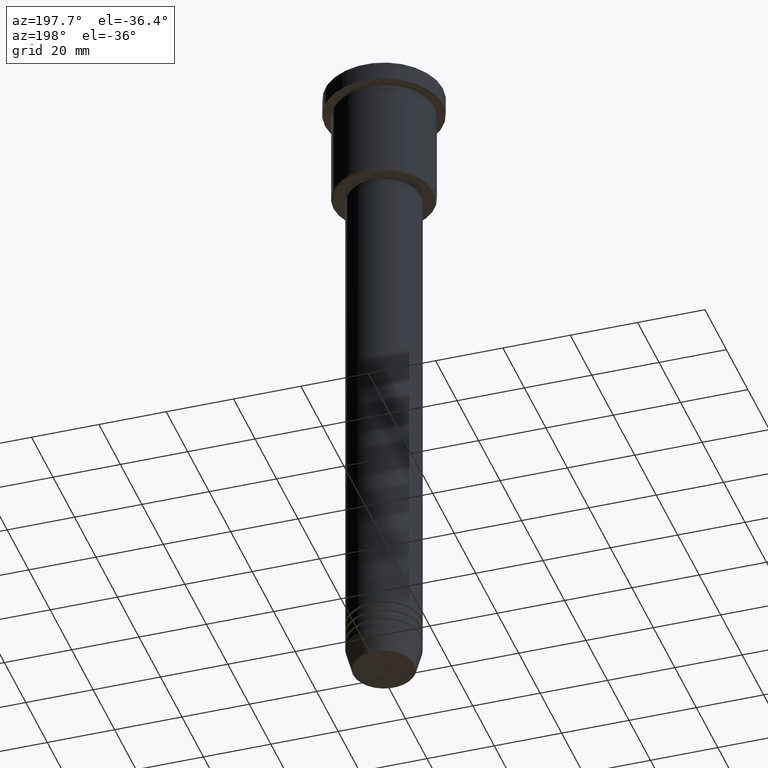
[diagram: clean part render]
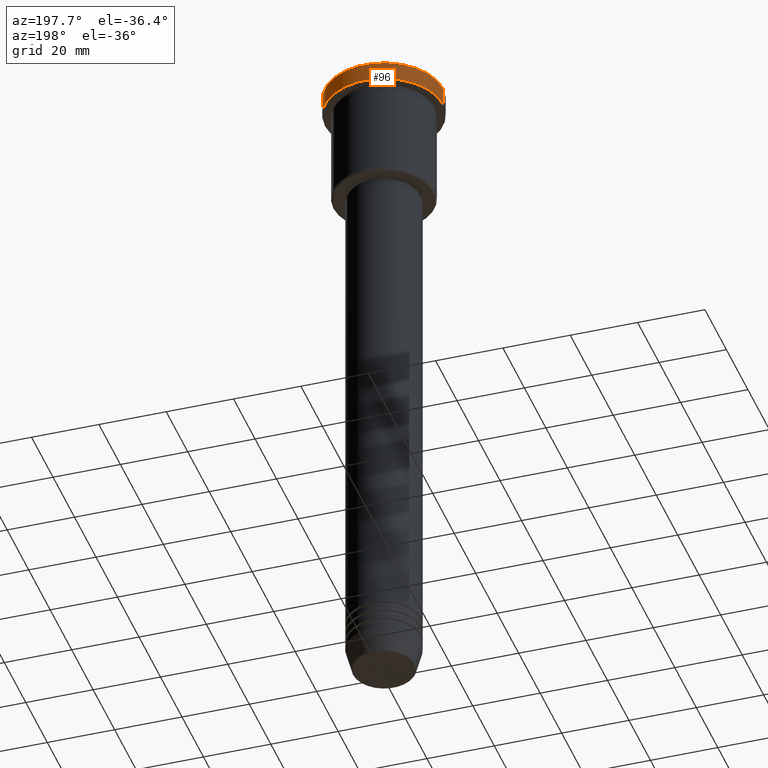
[diagram: same view with one face highlighted and labeled with its STEP entity id]
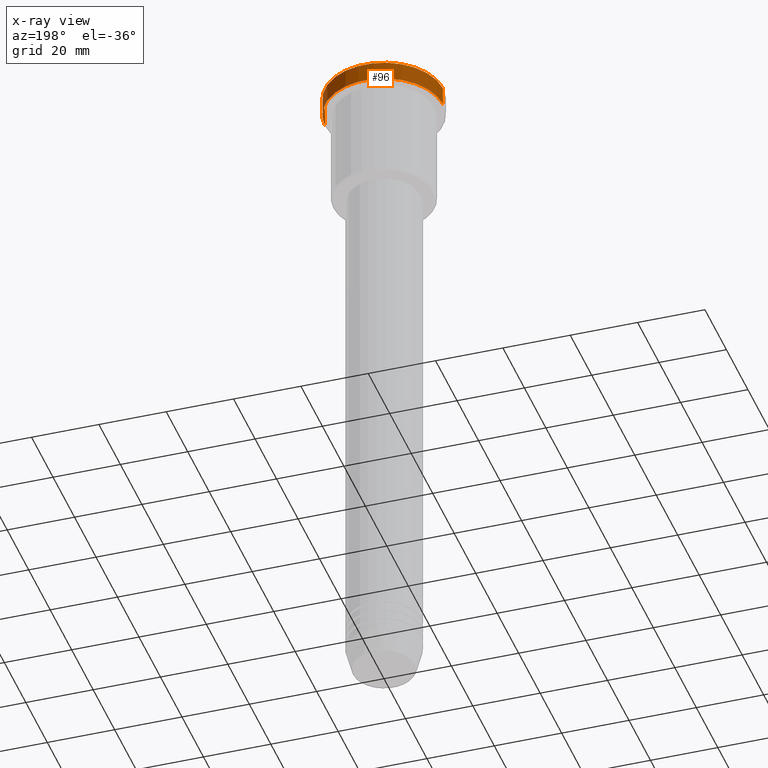
[diagram: x-ray of the same camera — body ghosted, the highlighted face saturated]
A machine part, auxiliary view. The second image highlights one B-rep face of the part: STEP entity #96.
The next image is the same camera in x-ray: the body ghosted, the highlighted face saturated — about 0% of this face is hidden behind the body in this view.
In plain terms, the highlighted cylindrical surface (partial cylindrical patch) has radius 17.5 mm, axis along (-0, -0, 1).
Its self-contained STEP definition (entity closure, byte-faithful):
#2 = EDGE_CURVE ( 'NONE', #369, #673, #1000, .T. ) ;
#5 = CARTESIAN_POINT ( 'NONE',  ( 17.50000000000000000, 0.000000000000000000, -5.999999999999995559 ) ) ;
#28 = FACE_OUTER_BOUND ( 'NONE', #325, .T. ) ;
#68 = DIRECTION ( 'NONE',  ( -0.000000000000000000, -0.000000000000000000, 1.000000000000000000 ) ) ;
#94 = CARTESIAN_POINT ( 'NONE',  ( 0.000000000000000000, 0.000000000000000000, -5.999999999999995559 ) ) ;
#96 = ADVANCED_FACE ( 'NONE', ( #28 ), #839, .T. ) ;
#148 = ORIENTED_EDGE ( 'NONE', *, *, #2, .T. ) ;
#167 = CIRCLE ( 'NONE', #509, 17.50000000000000000 ) ;
#174 = LINE ( 'NONE', #441, #885 ) ;
#249 = CARTESIAN_POINT ( 'NONE',  ( -17.50000000000000000, 2.143131898507868248E-15, 0.000000000000000000 ) ) ;
#325 = EDGE_LOOP ( 'NONE', ( #394, #1172, #148, #550 ) ) ;
#369 = VERTEX_POINT ( 'NONE', #1075 ) ;
#394 = ORIENTED_EDGE ( 'NONE', *, *, #889, .T. ) ;
#419 = VECTOR ( 'NONE', #892, 1000.000000000000000 ) ;
#441 = CARTESIAN_POINT ( 'NONE',  ( 17.50000000000000000, 0.000000000000000000, 0.000000000000000000 ) ) ;
#466 = CARTESIAN_POINT ( 'NONE',  ( 0.000000000000000000, 0.000000000000000000, -0.5000000000000003331 ) ) ;
#504 = AXIS2_PLACEMENT_3D ( 'NONE', #466, #536, #896 ) ;
#509 = AXIS2_PLACEMENT_3D ( 'NONE', #94, #623, #884 ) ;
#536 = DIRECTION ( 'NONE',  ( 0.000000000000000000, 0.000000000000000000, -1.000000000000000000 ) ) ;
#550 = ORIENTED_EDGE ( 'NONE', *, *, #904, .F. ) ;
#557 = DIRECTION ( 'NONE',  ( -0.000000000000000000, -0.000000000000000000, 1.000000000000000000 ) ) ;
#596 = AXIS2_PLACEMENT_3D ( 'NONE', #750, #557, #1106 ) ;
#623 = DIRECTION ( 'NONE',  ( -0.000000000000000000, -0.000000000000000000, 1.000000000000000000 ) ) ;
#634 = CARTESIAN_POINT ( 'NONE',  ( -17.50000000000000000, 2.143131898507868248E-15, -5.999999999999995559 ) ) ;
#673 = VERTEX_POINT ( 'NONE', #1117 ) ;
#750 = CARTESIAN_POINT ( 'NONE',  ( 0.000000000000000000, 0.000000000000000000, 0.000000000000000000 ) ) ;
#839 = CYLINDRICAL_SURFACE ( 'NONE', #596, 17.50000000000000000 ) ;
#841 = VERTEX_POINT ( 'NONE', #634 ) ;
#867 = EDGE_CURVE ( 'NONE', #841, #369, #915, .T. ) ;
#884 = DIRECTION ( 'NONE',  ( 1.000000000000000000, 0.000000000000000000, 0.000000000000000000 ) ) ;
#885 = VECTOR ( 'NONE', #68, 1000.000000000000000 ) ;
#889 = EDGE_CURVE ( 'NONE', #898, #841, #167, .T. ) ;
#892 = DIRECTION ( 'NONE',  ( -0.000000000000000000, -0.000000000000000000, 1.000000000000000000 ) ) ;
#896 = DIRECTION ( 'NONE',  ( 1.000000000000000000, 0.000000000000000000, 0.000000000000000000 ) ) ;
#898 = VERTEX_POINT ( 'NONE', #5 ) ;
#904 = EDGE_CURVE ( 'NONE', #898, #673, #174, .T. ) ;
#915 = LINE ( 'NONE', #249, #419 ) ;
#1000 = CIRCLE ( 'NONE', #504, 17.50000000000000000 ) ;
#1075 = CARTESIAN_POINT ( 'NONE',  ( -17.50000000000000000, 2.143131898507868248E-15, -0.5000000000000003331 ) ) ;
#1106 = DIRECTION ( 'NONE',  ( 1.000000000000000000, 0.000000000000000000, 0.000000000000000000 ) ) ;
#1117 = CARTESIAN_POINT ( 'NONE',  ( 17.50000000000000000, 0.000000000000000000, -0.5000000000000003331 ) ) ;
#1172 = ORIENTED_EDGE ( 'NONE', *, *, #867, .T. ) ;